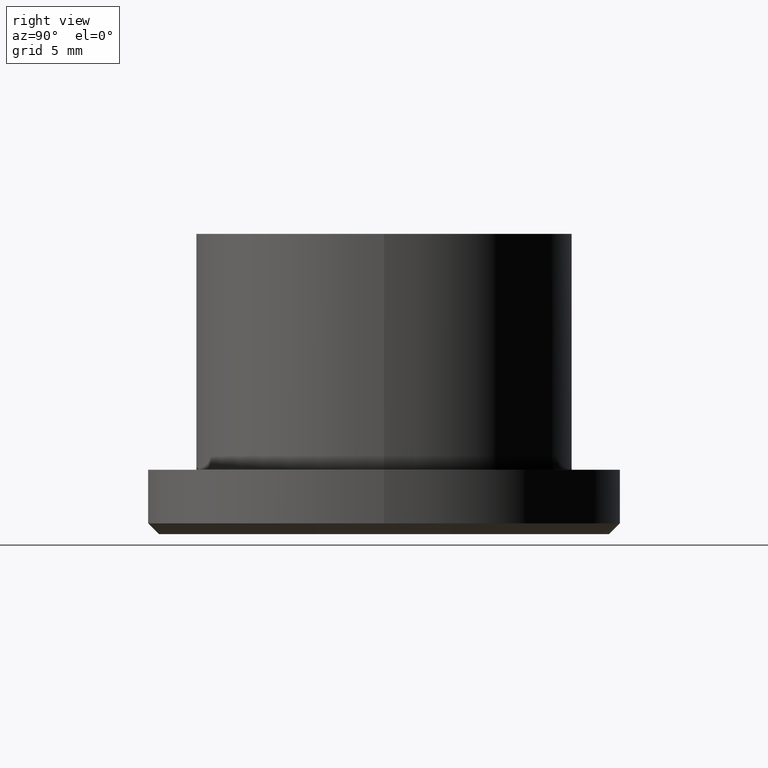
[diagram: clean part render]
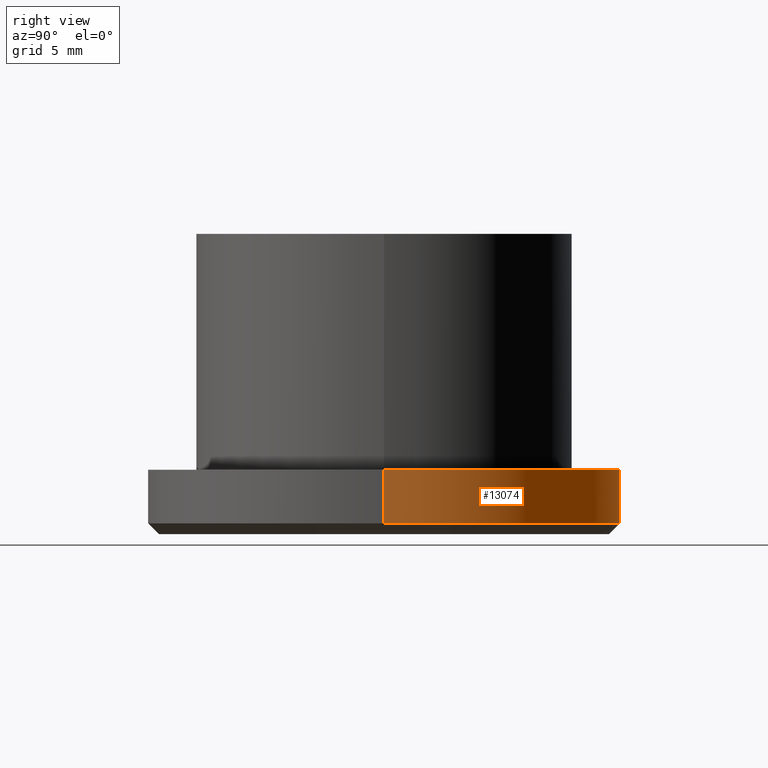
[diagram: same view with one face highlighted and labeled with its STEP entity id]
A machine part, right view. The second image highlights one B-rep face of the part: STEP entity #13074.
In plain terms, the highlighted cylindrical surface (partial cylindrical patch) has radius 11 mm, axis along (-0, -0, 1).
Its self-contained STEP definition (entity closure, byte-faithful):
#561 = ORIENTED_EDGE ( 'NONE', *, *, #1107, .T. ) ;
#979 = VERTEX_POINT ( 'NONE', #8013 ) ;
#1012 = DIRECTION ( 'NONE',  ( -0.000000000000000000, -0.000000000000000000, 1.000000000000000000 ) ) ;
#1070 = LINE ( 'NONE', #3976, #10554 ) ;
#1107 = EDGE_CURVE ( 'NONE', #1610, #11785, #1070, .T. ) ;
#1608 = CIRCLE ( 'NONE', #2327, 11.00000000000000000 ) ;
#1610 = VERTEX_POINT ( 'NONE', #7614 ) ;
#2327 = AXIS2_PLACEMENT_3D ( 'NONE', #9696, #3586, #12727 ) ;
#3012 = VECTOR ( 'NONE', #7815, 1000.000000000000000 ) ;
#3586 = DIRECTION ( 'NONE',  ( -0.000000000000000000, -0.000000000000000000, 1.000000000000000000 ) ) ;
#3901 = EDGE_CURVE ( 'NONE', #979, #11785, #6807, .T. ) ;
#3976 = CARTESIAN_POINT ( 'NONE',  ( -11.00000000000000000, 1.347111479062088405E-15, 7.000000000000000000 ) ) ;
#4762 = DIRECTION ( 'NONE',  ( 1.000000000000000000, 0.000000000000000000, 0.000000000000000000 ) ) ;
#4901 = CARTESIAN_POINT ( 'NONE',  ( 0.000000000000000000, 0.000000000000000000, 7.000000000000000000 ) ) ;
#5563 = FACE_OUTER_BOUND ( 'NONE', #11190, .T. ) ;
#5826 = ORIENTED_EDGE ( 'NONE', *, *, #8686, .T. ) ;
#6075 = DIRECTION ( 'NONE',  ( -0.000000000000000000, -0.000000000000000000, 1.000000000000000000 ) ) ;
#6807 = CIRCLE ( 'NONE', #9390, 11.00000000000000000 ) ;
#7293 = AXIS2_PLACEMENT_3D ( 'NONE', #4901, #1012, #11366 ) ;
#7614 = CARTESIAN_POINT ( 'NONE',  ( -11.00000000000000000, 1.347111479062088405E-15, -6.499999999999998224 ) ) ;
#7815 = DIRECTION ( 'NONE',  ( -0.000000000000000000, -0.000000000000000000, 1.000000000000000000 ) ) ;
#8013 = CARTESIAN_POINT ( 'NONE',  ( 11.00000000000000000, 0.000000000000000000, -4.000000000000000888 ) ) ;
#8087 = CARTESIAN_POINT ( 'NONE',  ( -11.00000000000000000, 1.347111479062088405E-15, -4.000000000000000888 ) ) ;
#8686 = EDGE_CURVE ( 'NONE', #13025, #1610, #1608, .T. ) ;
#8780 = DIRECTION ( 'NONE',  ( -0.000000000000000000, -0.000000000000000000, 1.000000000000000000 ) ) ;
#9390 = AXIS2_PLACEMENT_3D ( 'NONE', #10895, #8780, #4762 ) ;
#9470 = ORIENTED_EDGE ( 'NONE', *, *, #3901, .F. ) ;
#9696 = CARTESIAN_POINT ( 'NONE',  ( 0.000000000000000000, 0.000000000000000000, -6.499999999999998224 ) ) ;
#10554 = VECTOR ( 'NONE', #6075, 1000.000000000000000 ) ;
#10895 = CARTESIAN_POINT ( 'NONE',  ( 0.000000000000000000, 0.000000000000000000, -4.000000000000000888 ) ) ;
#10914 = CARTESIAN_POINT ( 'NONE',  ( 11.00000000000000000, 0.000000000000000000, 7.000000000000000000 ) ) ;
#11190 = EDGE_LOOP ( 'NONE', ( #5826, #561, #9470, #11529 ) ) ;
#11366 = DIRECTION ( 'NONE',  ( 1.000000000000000000, 0.000000000000000000, 0.000000000000000000 ) ) ;
#11529 = ORIENTED_EDGE ( 'NONE', *, *, #12598, .F. ) ;
#11785 = VERTEX_POINT ( 'NONE', #8087 ) ;
#11995 = CARTESIAN_POINT ( 'NONE',  ( 11.00000000000000000, 0.000000000000000000, -6.499999999999998224 ) ) ;
#12161 = CYLINDRICAL_SURFACE ( 'NONE', #7293, 11.00000000000000000 ) ;
#12598 = EDGE_CURVE ( 'NONE', #13025, #979, #12790, .T. ) ;
#12727 = DIRECTION ( 'NONE',  ( 1.000000000000000000, 0.000000000000000000, 0.000000000000000000 ) ) ;
#12790 = LINE ( 'NONE', #10914, #3012 ) ;
#13025 = VERTEX_POINT ( 'NONE', #11995 ) ;
#13074 = ADVANCED_FACE ( 'NONE', ( #5563 ), #12161, .T. ) ;